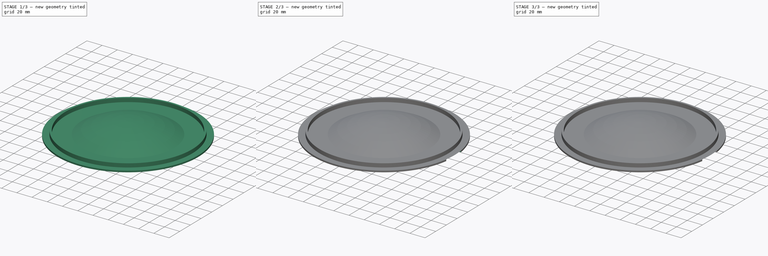
[diagram: build sequence overview — one tinted view per stage of 3, left to right]
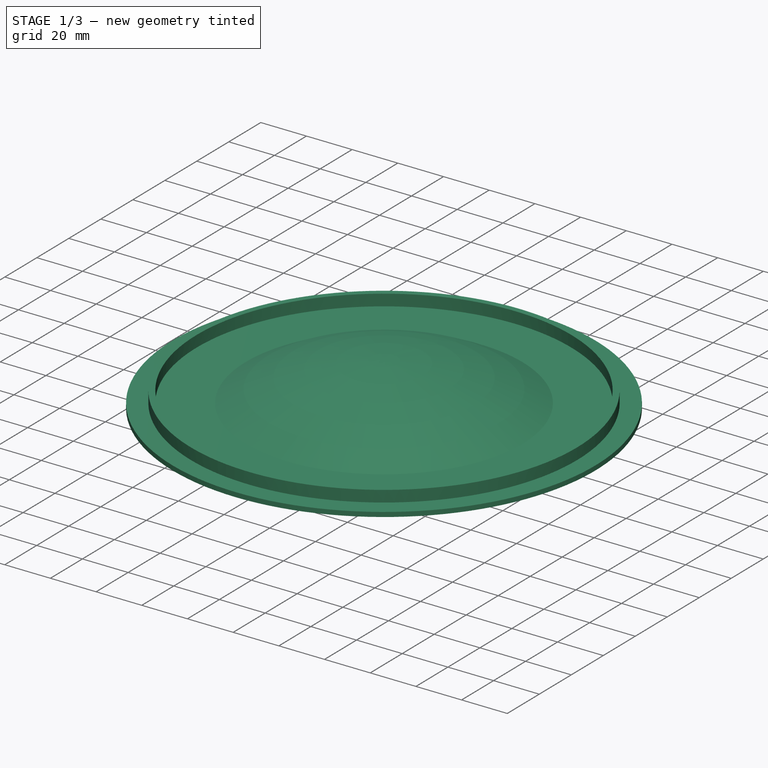
[diagram: stage 1 of 3 — iso view after this stage's code; geometry added in this stage tinted green]
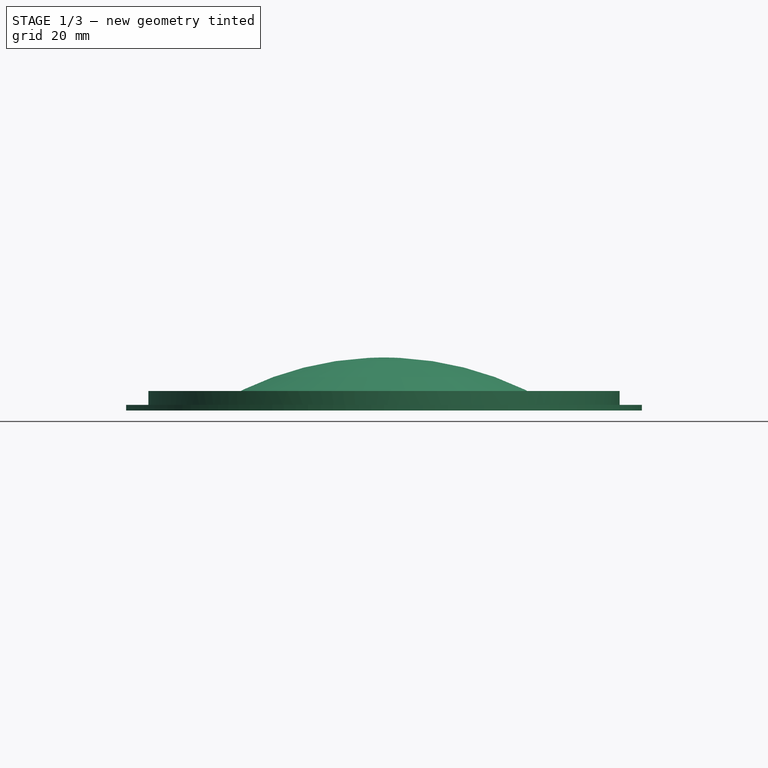
[diagram: stage 1 of 3 — front view after this stage's code; geometry added in this stage tinted green]
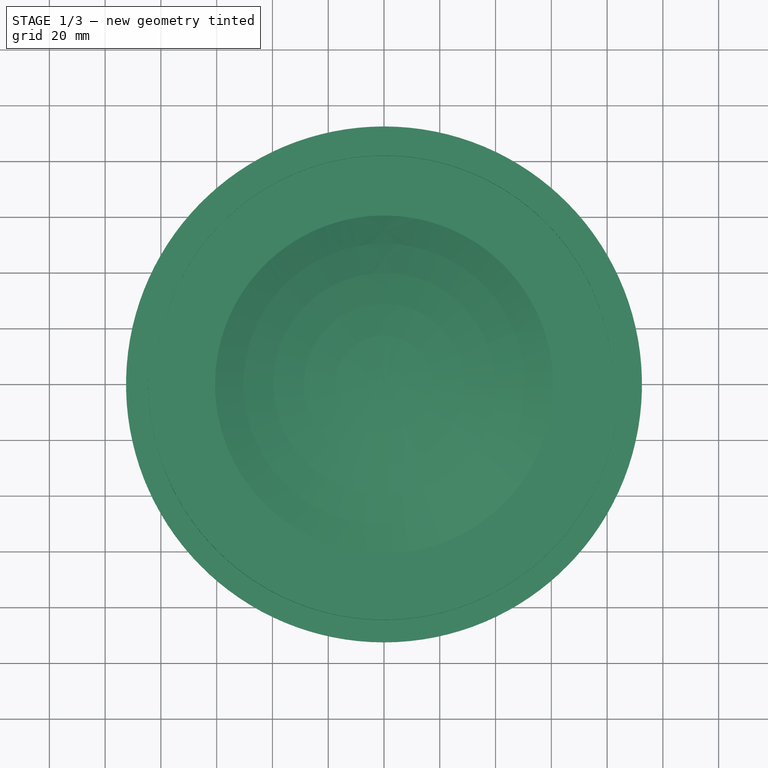
[diagram: stage 1 of 3 — top view after this stage's code; geometry added in this stage tinted green]
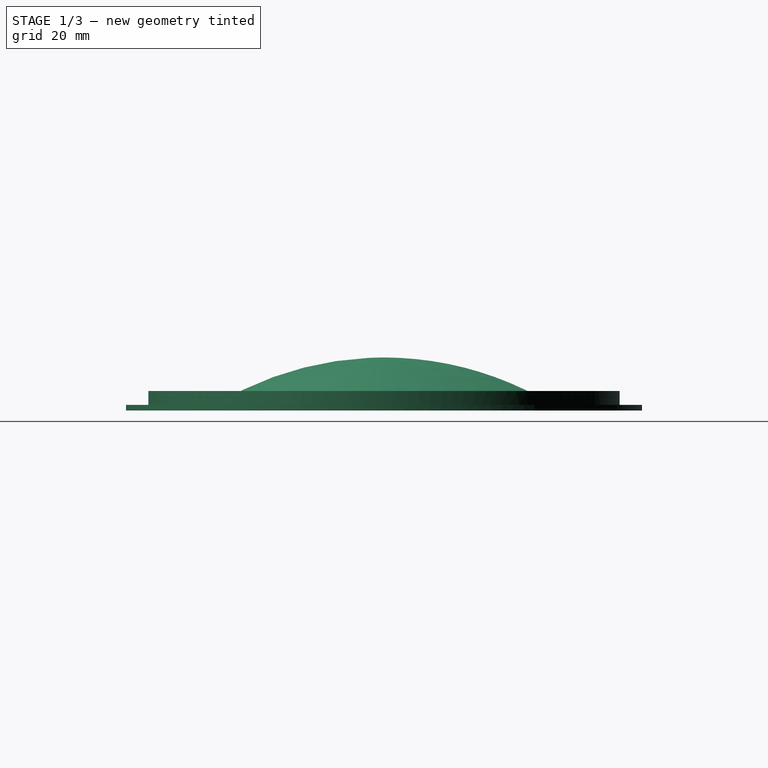
[diagram: stage 1 of 3 — right view after this stage's code; geometry added in this stage tinted green]
FCSTD DOCUMENT  (FreeCAD 0.21R33771 (Git))
Label: lid
License: All rights reserved
LicenseURL: http://en.wikipedia.org/wiki/All_rights_reserved
objects: Sketcher::SketchObject×4, Part::Feature×4, PartDesign::Pad×2, Part::FeaturePython×2, PartDesign::Revolution×1, PartDesign::Pocket×1, Part::Extrusion×1, PartDesign::Mirrored×1, PartDesign::Body×1, Part::Cut×1
note: 22 computed .brp shape members not serialized (recipe doc carries the construction recipe); baked Part::Feature solids carry a one-line shape summary decoded from their .brp

FEATURE [Sketcher::SketchObject] Sketch
  FullyConstrained = true
  MapMode = 5
  Support = -> [XY_Plane]
  expr: Constraints[3] = .Constraints.diameter - 5 mm
  sketch-geometry (2):
    g0: Circle CenterX=0 CenterY=0 CenterZ=0 NormalX=0 NormalY=0 NormalZ=1 AngleXU=0 Radius=82
    g1: Circle CenterX=0 CenterY=0 CenterZ=0 NormalX=0 NormalY=0 NormalZ=1 AngleXU=0 Radius=84.5
  constraints (4):
    c: Coincident(g0,g-1)
    c: Coincident(g1,g0)
    c: Diameter(g1) = 169  'diameter'
    c: Diameter(g0) = 164
FEATURE [PartDesign::Pad] Pad
  Direction = (0,0,1)
  Length = 5
  Length2 = 10
  Profile = -> Sketch
  ReferenceAxis = -> Sketch [N_Axis]
  Type = 0
FEATURE [Sketcher::SketchObject] Sketch001
  FullyConstrained = true
  MapMode = 5
  Support = -> [XY_Plane]
  sketch-geometry (10):
    g0: ArcOfCircle CenterX=0 CenterY=0 CenterZ=0 NormalX=0 NormalY=0 NormalZ=1 AngleXU=0 Radius=87 StartAngle=6.1332 EndAngle=6.43317
    g1: ArcOfCircle CenterX=0 CenterY=0 CenterZ=0 NormalX=0 NormalY=0 NormalZ=1 AngleXU=0 Radius=87 StartAngle=2.8258 EndAngle=3.12577
    g2: LineSegment StartX=115.686 StartY=-17.4828 StartZ=0 EndX=86.0233 EndY=-13 EndZ=0
    g3: LineSegment StartX=115.686 StartY=17.4828 StartZ=0 EndX=86.0233 EndY=13 EndZ=0
    g4: LineSegment StartX=-82.6979 StartY=27.0196 StartZ=0 EndX=-111.214 EndY=36.3368 EndZ=0
    g5: LineSegment StartX=-86.9891 StartY=1.37622 StartZ=0 EndX=-116.985 EndY=1.85078 EndZ=0
    g6: LineSegment StartX=115.686 StartY=-17.4828 StartZ=0 EndX=115.686 EndY=17.4828 EndZ=0
    g7: LineSegment StartX=-116.985 StartY=1.85078 StartZ=0 EndX=-111.214 EndY=36.3368 EndZ=0
    g8: LineSegment StartX=115.686 StartY=0 StartZ=0 EndX=0 EndY=0 EndZ=0
    g9: LineSegment StartX=0 StartY=0 StartZ=0 EndX=-114.1 EndY=19.0938 EndZ=0
  constraints (28):
    c: Equal(g0,g1)
    c: Coincident(g2,g0)
    c: Coincident(g3,g0)
    c: Coincident(g4,g1)
    c: Coincident(g5,g1)
    c: Distance(g0,g0) = 26
    c: Distance(g1,g1) = 26
    c: Diameter(g0) = 174
    c: Coincident(g6,g2)
    c: Coincident(g7,g5)
    c: Perpendicular(g7,g9)
    c: Perpendicular(g8,g6)
    c: Angle(g8,g9) = 2.97579
    c: Horizontal(g8)
    c: Coincident(g1,g8)
    c: PointOnObject(g0,g3)
    c: PointOnObject(g0,g2)
    c: Coincident(g1,g9)
    c: Coincident(g1,g-1)
    c: Coincident(g0,g1)
    c: PointOnObject(g0,g5)
    c: PointOnObject(g0,g4)
    c: Coincident(g7,g4)
    c: Coincident(g6,g3)
    c: Symmetric(g2,g3,g8)
    c: Symmetric(g4,g5,g9)
    c: Equal(g4,g3)
    c: Distance(g3) = 30
FEATURE [Sketcher::SketchObject] Sketch002
  FullyConstrained = true
  MapMode = 5
  Placement = pos=(0,0,0) rot=(0.57735,0.57735,0.57735;2.0944rad)
  Support = -> [YZ_Plane]
  sketch-geometry (7):
    g0: ArcOfCircle CenterX=0 CenterY=-99.3824 CenterZ=0 NormalX=0 NormalY=0 NormalZ=1 AngleXU=0 Radius=114.382 StartAngle=1.0186 EndAngle=1.5708
    g1: LineSegment StartX=60 StartY=-2 StartZ=0 EndX=92.5 EndY=-2 EndZ=0
    g2: LineSegment StartX=92.5 StartY=0 StartZ=0 EndX=60.564 EndY=-1.42e-14 EndZ=0
    g3: ArcOfCircle CenterX=0 CenterY=-99.3824 CenterZ=0 NormalX=0 NormalY=0 NormalZ=1 AngleXU=0 Radius=116.382 StartAngle=1.02349 EndAngle=1.5708
    g4: LineSegment StartX=-1.46319e-05 StartY=15 StartZ=0 EndX=7.1e-15 EndY=17 EndZ=0
    g5: LineSegment StartX=92.5 StartY=-2 StartZ=0 EndX=92.5 EndY=0 EndZ=0
    g6: LineSegment StartX=60.564 StartY=-1.42e-14 StartZ=0 EndX=59.5232 EndY=-1.70786 EndZ=0
  constraints (22):
    c: PointOnObject(g0,g-2)
    c: Coincident(g1,g0)
    c: Horizontal(g1)
    c: PointOnObject(g2,g-1)
    c: PointOnObject(g2,g-1)
    c: Coincident(g3,g0)
    c: Coincident(g3,g2)
    c: Coincident(g5,g1)
    c: Coincident(g5,g2)
    c: Vertical(g5)
    c: DistanceY(g5,g5) = 2
    c: DistanceX(g-1,g0) = 60
    c: DistanceX(g-1,g1) = 92.5
    c: Coincident(g6,g2)
    c: PointOnObject(g6,g0)
    c: Perpendicular(g0,g6)
    c: Equal(g6,g5)
    c: Coincident(g0,g4)
    c: Equal(g4,g5)
    c: DistanceY(g-1,g0) = 15
    c: PointOnObject(g3,g-2)
    c: Coincident(g4,g3)
FEATURE [PartDesign::Revolution] Revolution
  Angle = 360
  Axis = (-2e-16,7.31594e-06,1)
  Base = (-3.3e-15,-1.46319e-05,15)
  BaseFeature = -> Pad
  Profile = -> Sketch002
  ReferenceAxis = -> Sketch002 [Edge3]
  Reversed = true
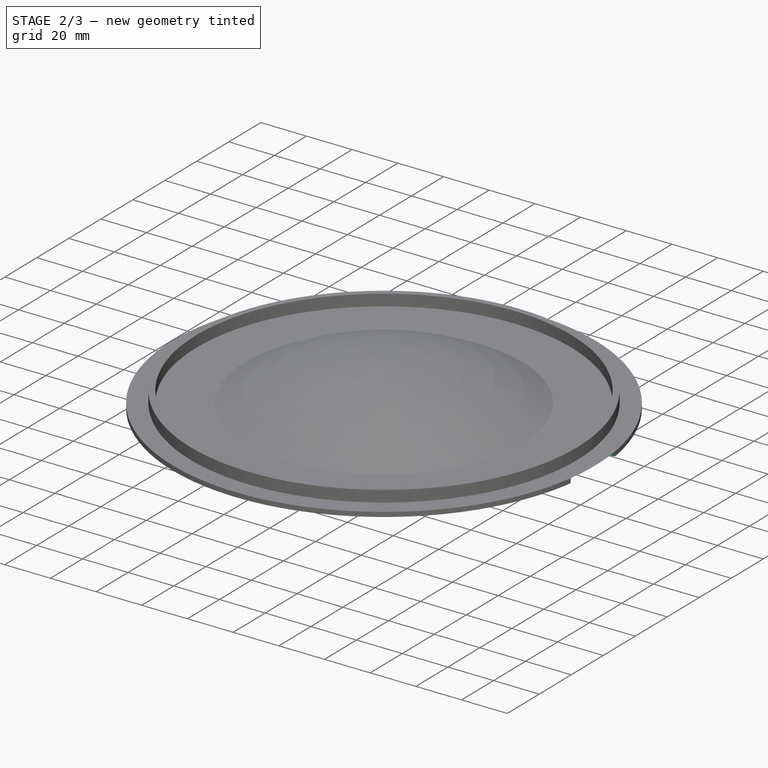
[diagram: stage 2 of 3 — iso view after this stage's code; geometry added in this stage tinted green]
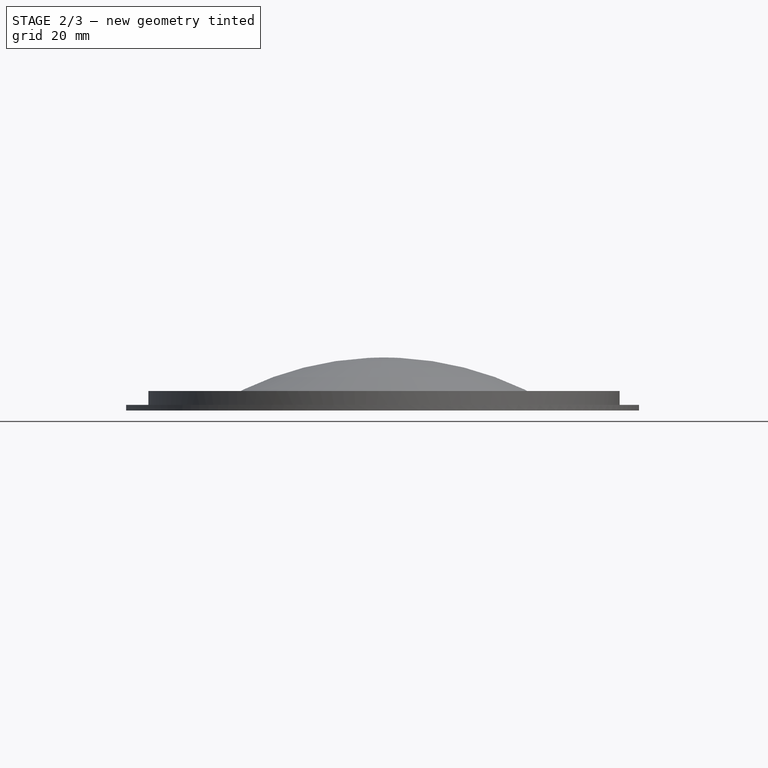
[diagram: stage 2 of 3 — front view after this stage's code; geometry added in this stage tinted green]
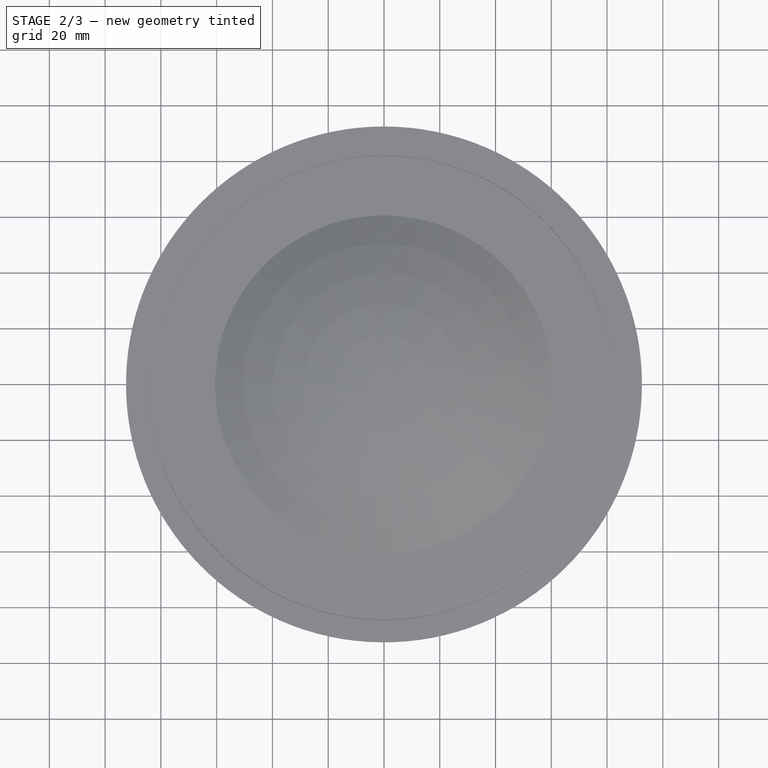
[diagram: stage 2 of 3 — top view after this stage's code; geometry added in this stage tinted green]
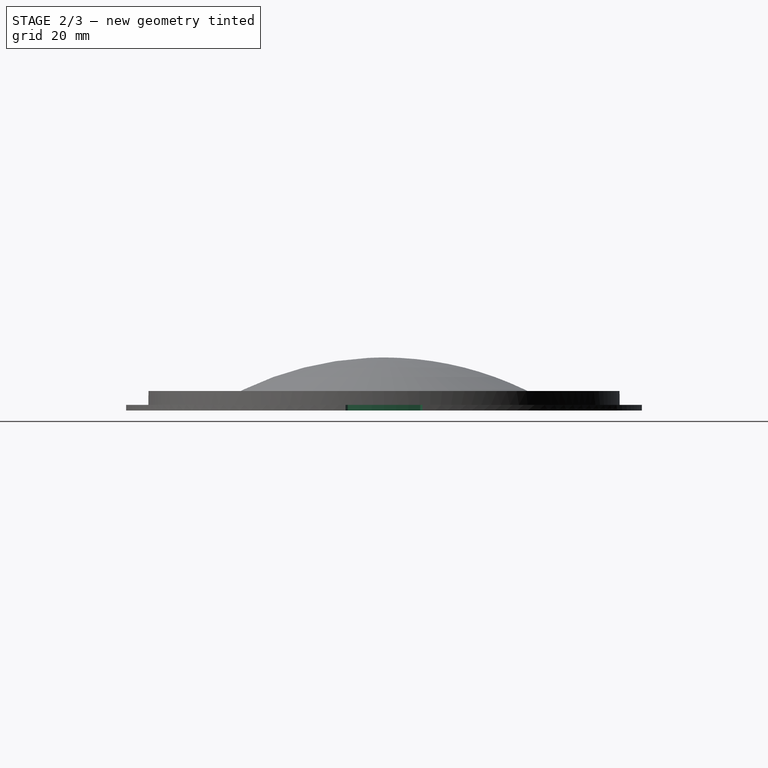
[diagram: stage 2 of 3 — right view after this stage's code; geometry added in this stage tinted green]
FEATURE [PartDesign::Pocket] Pocket
  BaseFeature = -> Revolution
  Direction = (0,0,-1)
  Length = 5
  Length2 = 5
  Profile = -> Sketch001
  ReferenceAxis = -> Sketch001 [N_Axis]
  Type = 1
FEATURE [Sketcher::SketchObject] Sketch003
  FullyConstrained = true
  MapMode = 5
  Placement = pos=(0,0,0) rot=(0.57735,0.57735,0.57735;2.0944rad)
  Support = -> [YZ_Plane]
  sketch-geometry (4):
    g0: LineSegment StartX=-20 StartY=-1.99 StartZ=0 EndX=-15 EndY=1.01 EndZ=0
    g1: LineSegment StartX=-15 StartY=1.01 StartZ=0 EndX=15 EndY=1.01 EndZ=0
    g2: LineSegment StartX=15 StartY=1.01 StartZ=0 EndX=20 EndY=-1.99 EndZ=0
    g3: LineSegment StartX=20 StartY=-1.99 StartZ=0 EndX=-20 EndY=-1.99 EndZ=0
  constraints (10):
    c: Coincident(g1,g0)
    c: Coincident(g2,g1)
    c: Coincident(g3,g0)
    c: Symmetric(g2,g0,g-2)
    c: Symmetric(g0,g1,g-2)
    c: Coincident(g2,g3)
    c: DistanceY(g2,g-1) = 1.99
    c: DistanceX(g1,g1) = 30
    c: DistanceX(g3,g3) = 40
    c: DistanceY(g0,g0) = 3
FEATURE [PartDesign::Pad] Pad001
  BaseFeature = -> Pocket
  Direction = (1,-2e-16,3e-16)
  Length = 10
  Length2 = 10
  Profile = -> Sketch003
  ReferenceAxis = -> Sketch003 [N_Axis]
  Type = 3
  UpToFace = -> Pocket [Face16]
FEATURE [PartDesign::Mirrored] Mirrored
  BaseFeature = -> Pad001
  MirrorPlane = -> YZ_Plane
  Originals = -> [Pad001]
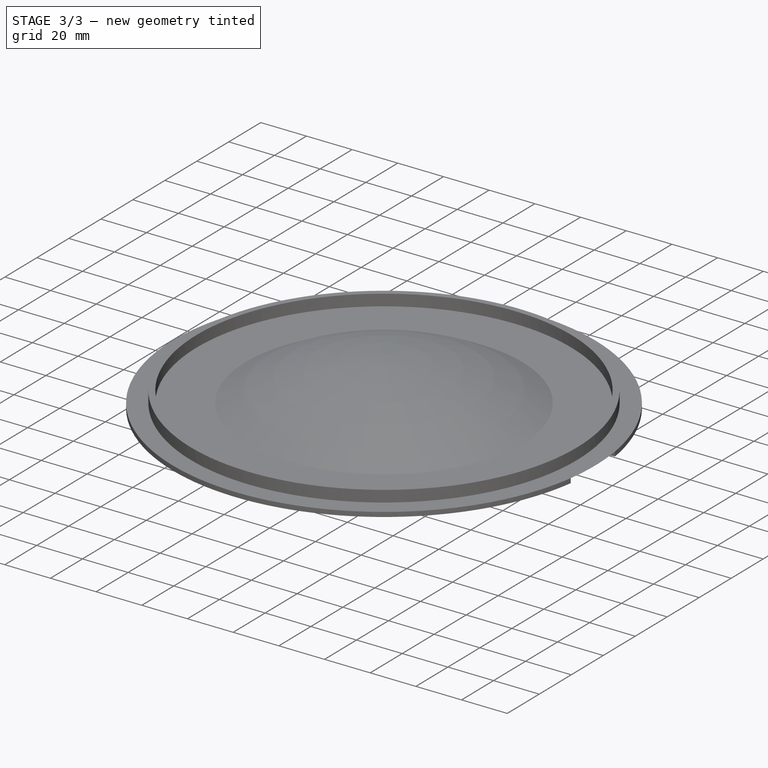
[diagram: stage 3 of 3 — iso view after this stage's code; geometry added in this stage tinted green]
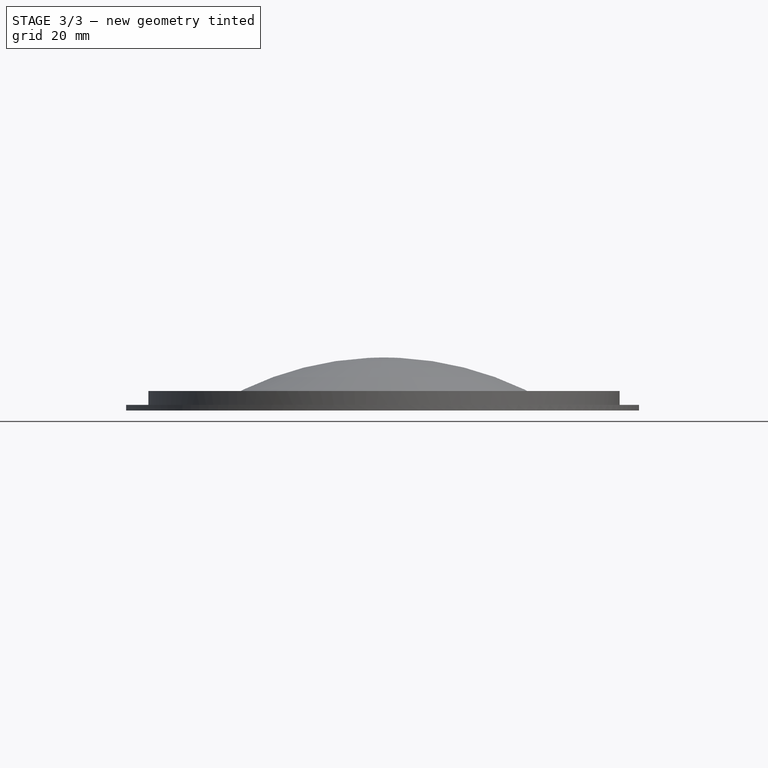
[diagram: stage 3 of 3 — front view after this stage's code; geometry added in this stage tinted green]
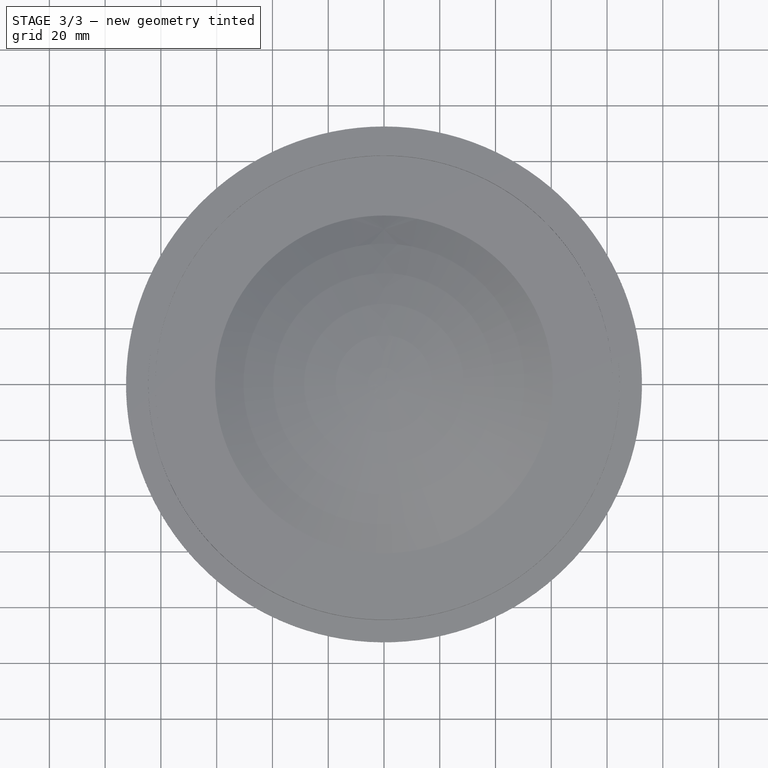
[diagram: stage 3 of 3 — top view after this stage's code; geometry added in this stage tinted green]
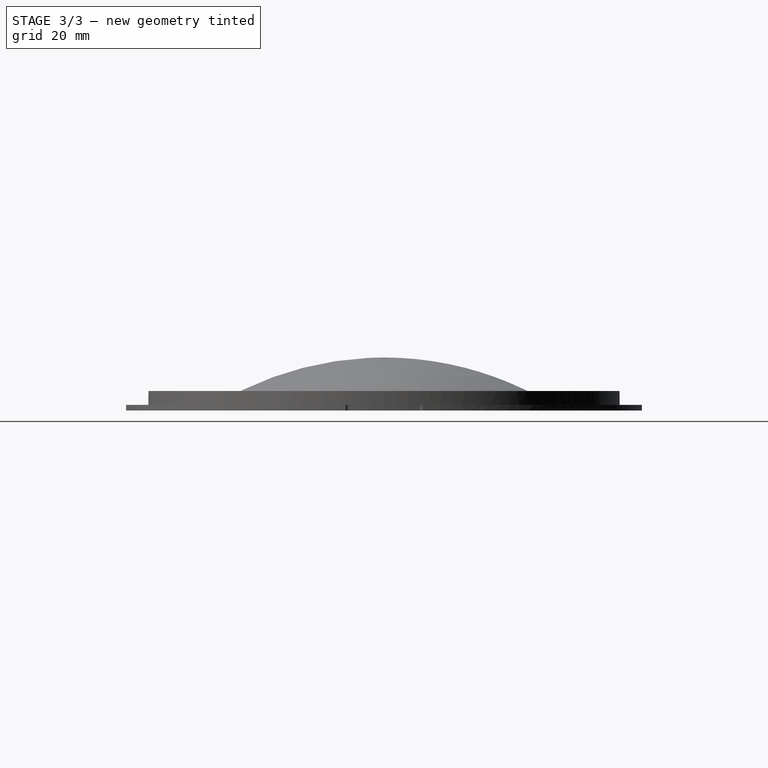
[diagram: stage 3 of 3 — right view after this stage's code; geometry added in this stage tinted green]
FEATURE [Part::Feature] path0
  shape: bbox 101.9 x 59.1 x 2e-07 mm, 1 faces, 0 solids (baked)
FEATURE [Part::Feature] path001
  shape: bbox 73.51 x 40.75 x 2e-07 mm, 1 faces, 0 solids (baked)
FEATURE [Part::Feature] path002
  shape: bbox 30.31 x 24.47 x 2e-07 mm, 1 faces, 0 solids (baked)
FEATURE [Part::Feature] path003
  shape: bbox 10.73 x 4.192 x 2e-07 mm, 1 faces, 0 solids (baked)
FEATURE [Part::FeaturePython] XOR  label="Ade"  # WARN: FeaturePython — macro-defined, semantics opaque (R4)
  Objects = -> [path0,path001,path002,path003]
  Placement = pos=(0,0,0) rot=(0,0,1;4.71239rad)
  Tolerance = 0
FEATURE [Part::FeaturePython] Clone  label="AdeScale"  # Draft clone (typed FeaturePython)
  AttacherType = Attacher::AttachEngine3D
  Fuse = false
  Objects = -> [XOR]
  Placement = pos=(30.4,28.4,-1) rot=(0,0,1;0rad)
  Scale = (-0.5,0.5,0.5)
FEATURE [Part::Extrusion] Extrude  label="AdeExtrude"
  Base = -> Clone
  Dir = (0,0,-1)
  DirMode = 0
  FaceMakerClass = Part::FaceMakerBullseye
  LengthFwd = 10
  LengthRev = 0
  Solid = false
  Symmetric = false
FEATURE [PartDesign::Body] Body
  Group = -> [Sketch,Pad,Sketch001,Sketch002,Revolution,Pocket,Sketch003,Pad001,Mirrored]
  Origin = -> Origin
  Tip = -> Mirrored
FEATURE [Part::Cut] Cut
  Base = -> Body
  Tool = -> Extrude
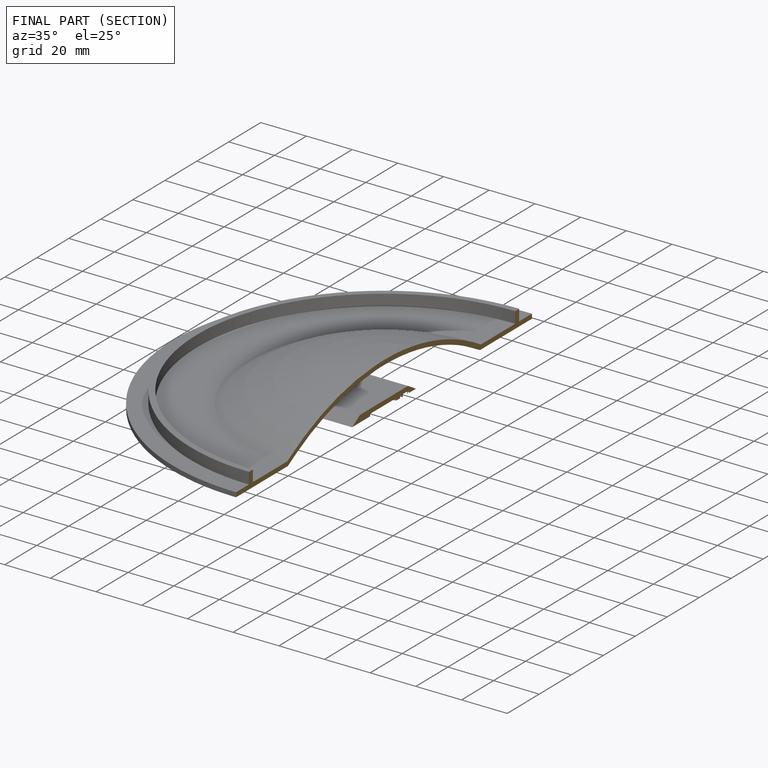
[diagram: finished part — half-section view (interior)]
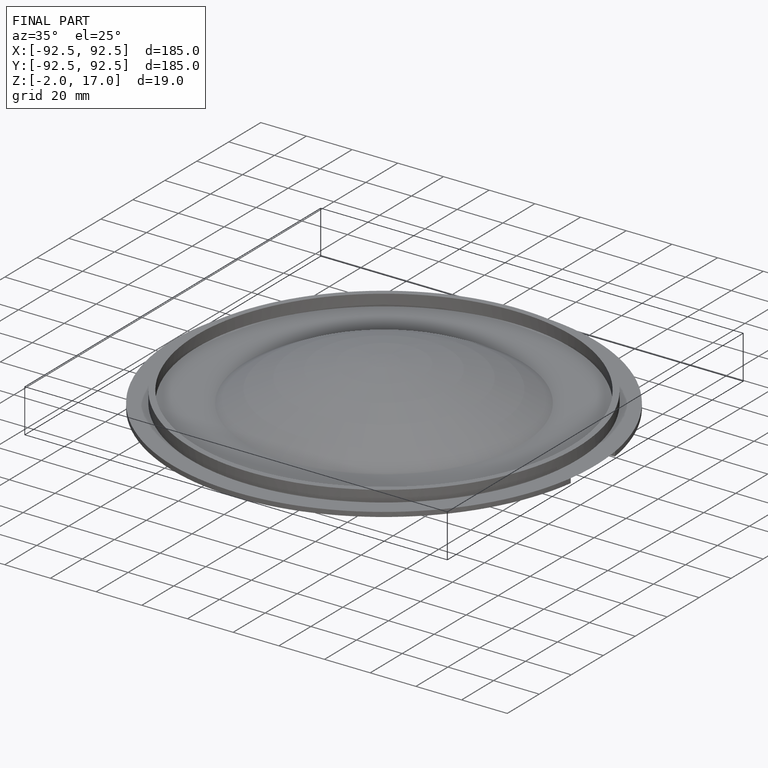
[diagram: finished part — iso view with bounding-box wireframe]
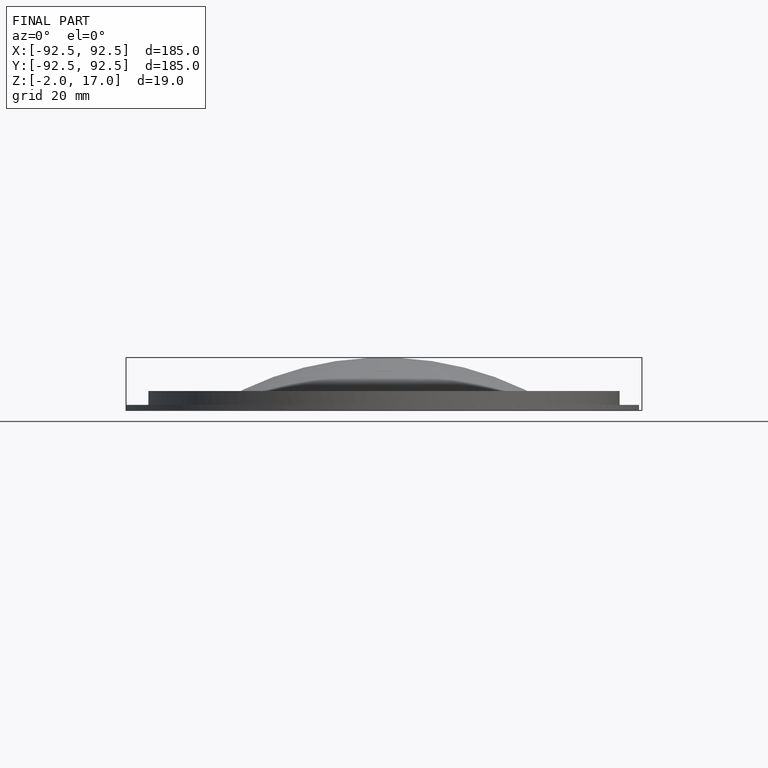
[diagram: finished part — front view with bounding-box wireframe]
